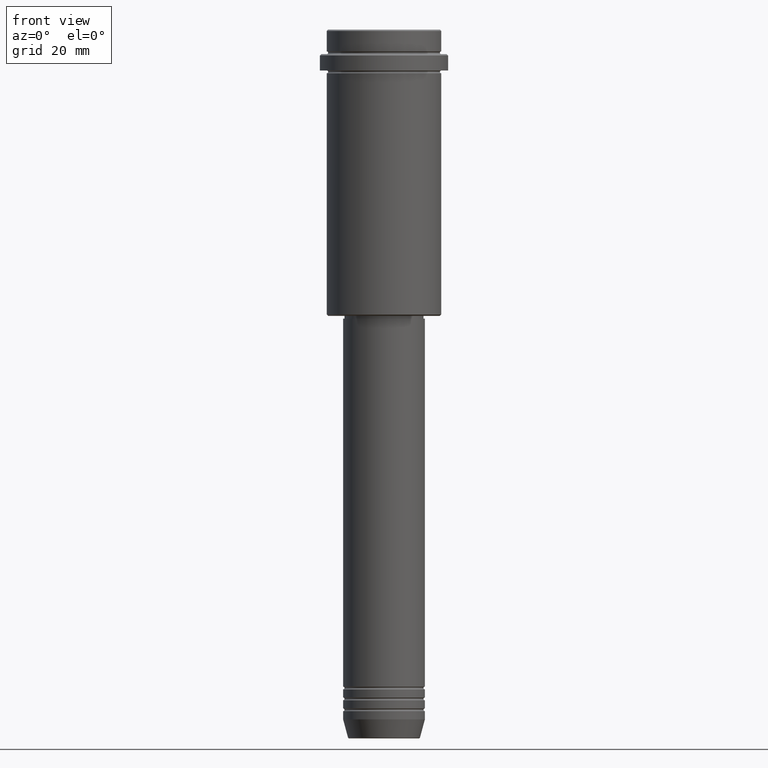
[diagram: clean part render]
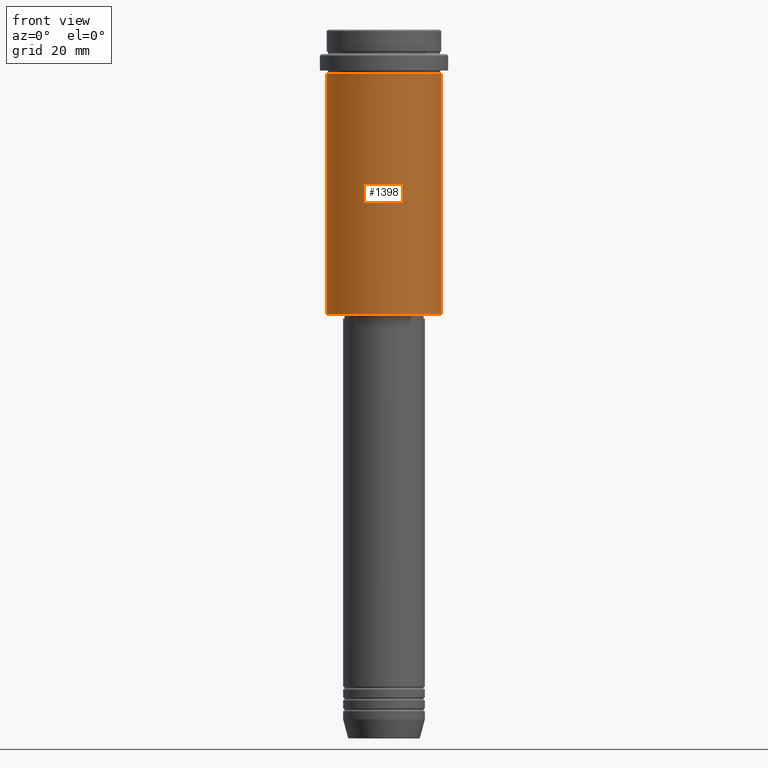
[diagram: same view with one face highlighted and labeled with its STEP entity id]
A machine part, front view. The second image highlights one B-rep face of the part: STEP entity #1398.
In plain terms, the highlighted cylindrical surface (partial cylindrical patch) has radius 21 mm, axis along (-0, -0, 1).
Its self-contained STEP definition (entity closure, byte-faithful):
#27 = VECTOR ( 'NONE', #1167, 1000.000000000000000 ) ;
#49 = VERTEX_POINT ( 'NONE', #63 ) ;
#53 = ORIENTED_EDGE ( 'NONE', *, *, #489, .F. ) ;
#58 = CARTESIAN_POINT ( 'NONE',  ( 0.000000000000000000, 0.000000000000000000, 0.000000000000000000 ) ) ;
#63 = CARTESIAN_POINT ( 'NONE',  ( 21.00000000000000000, 0.000000000000000000, -16.00000000000000355 ) ) ;
#104 = DIRECTION ( 'NONE',  ( 1.000000000000000000, 0.000000000000000000, 0.000000000000000000 ) ) ;
#216 = LINE ( 'NONE', #1100, #961 ) ;
#281 = LINE ( 'NONE', #291, #27 ) ;
#291 = CARTESIAN_POINT ( 'NONE',  ( 21.00000000000000000, 0.000000000000000000, 0.000000000000000000 ) ) ;
#489 = EDGE_CURVE ( 'NONE', #757, #49, #632, .T. ) ;
#513 = CARTESIAN_POINT ( 'NONE',  ( 21.00000000000000000, 0.000000000000000000, -104.4999999999999289 ) ) ;
#528 = CARTESIAN_POINT ( 'NONE',  ( -21.00000000000000000, 2.571758278209441661E-15, -104.4999999999999289 ) ) ;
#530 = ORIENTED_EDGE ( 'NONE', *, *, #965, .F. ) ;
#594 = AXIS2_PLACEMENT_3D ( 'NONE', #960, #1046, #953 ) ;
#632 = CIRCLE ( 'NONE', #1237, 21.00000000000000000 ) ;
#659 = CIRCLE ( 'NONE', #594, 21.00000000000000000 ) ;
#673 = EDGE_LOOP ( 'NONE', ( #530, #809, #1311, #53 ) ) ;
#700 = DIRECTION ( 'NONE',  ( 1.000000000000000000, 0.000000000000000000, 0.000000000000000000 ) ) ;
#718 = VERTEX_POINT ( 'NONE', #513 ) ;
#737 = EDGE_CURVE ( 'NONE', #852, #718, #659, .T. ) ;
#757 = VERTEX_POINT ( 'NONE', #1152 ) ;
#809 = ORIENTED_EDGE ( 'NONE', *, *, #737, .T. ) ;
#852 = VERTEX_POINT ( 'NONE', #528 ) ;
#878 = CARTESIAN_POINT ( 'NONE',  ( 0.000000000000000000, 0.000000000000000000, -16.00000000000000355 ) ) ;
#884 = DIRECTION ( 'NONE',  ( -0.000000000000000000, -0.000000000000000000, 1.000000000000000000 ) ) ;
#898 = AXIS2_PLACEMENT_3D ( 'NONE', #58, #1361, #700 ) ;
#953 = DIRECTION ( 'NONE',  ( -1.000000000000000000, 0.000000000000000000, 0.000000000000000000 ) ) ;
#960 = CARTESIAN_POINT ( 'NONE',  ( 0.000000000000000000, 0.000000000000000000, -104.4999999999999289 ) ) ;
#961 = VECTOR ( 'NONE', #884, 1000.000000000000000 ) ;
#965 = EDGE_CURVE ( 'NONE', #852, #757, #216, .T. ) ;
#1046 = DIRECTION ( 'NONE',  ( -0.000000000000000000, -0.000000000000000000, 1.000000000000000000 ) ) ;
#1057 = CYLINDRICAL_SURFACE ( 'NONE', #898, 21.00000000000000000 ) ;
#1093 = DIRECTION ( 'NONE',  ( -0.000000000000000000, -0.000000000000000000, 1.000000000000000000 ) ) ;
#1100 = CARTESIAN_POINT ( 'NONE',  ( -21.00000000000000000, 2.571758278209441661E-15, 0.000000000000000000 ) ) ;
#1151 = FACE_OUTER_BOUND ( 'NONE', #673, .T. ) ;
#1152 = CARTESIAN_POINT ( 'NONE',  ( -21.00000000000000000, 2.571758278209441661E-15, -16.00000000000000355 ) ) ;
#1154 = EDGE_CURVE ( 'NONE', #718, #49, #281, .T. ) ;
#1167 = DIRECTION ( 'NONE',  ( -0.000000000000000000, -0.000000000000000000, 1.000000000000000000 ) ) ;
#1237 = AXIS2_PLACEMENT_3D ( 'NONE', #878, #1093, #104 ) ;
#1311 = ORIENTED_EDGE ( 'NONE', *, *, #1154, .T. ) ;
#1361 = DIRECTION ( 'NONE',  ( -0.000000000000000000, -0.000000000000000000, 1.000000000000000000 ) ) ;
#1398 = ADVANCED_FACE ( 'NONE', ( #1151 ), #1057, .T. ) ;